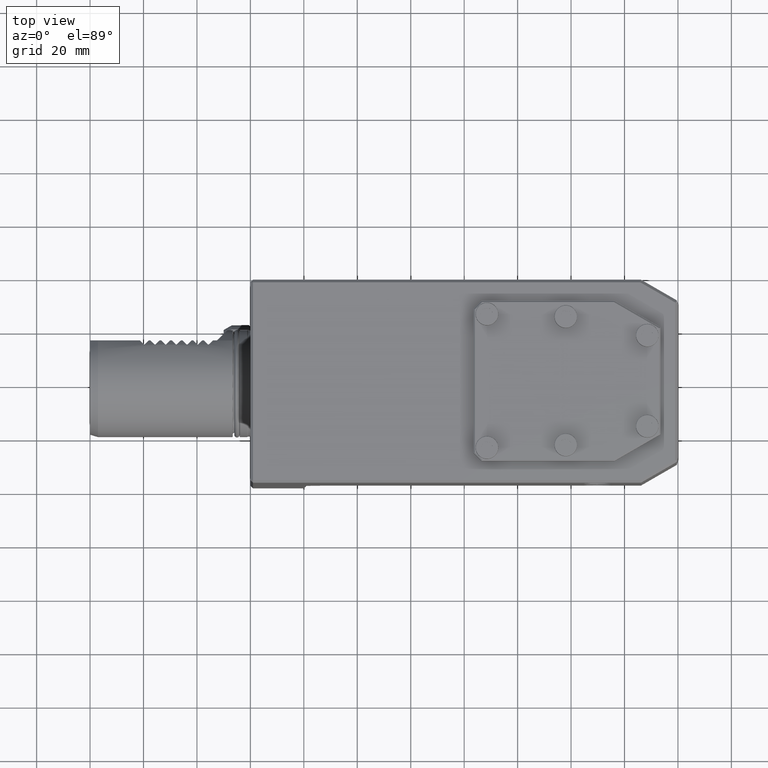
[diagram: clean part render]
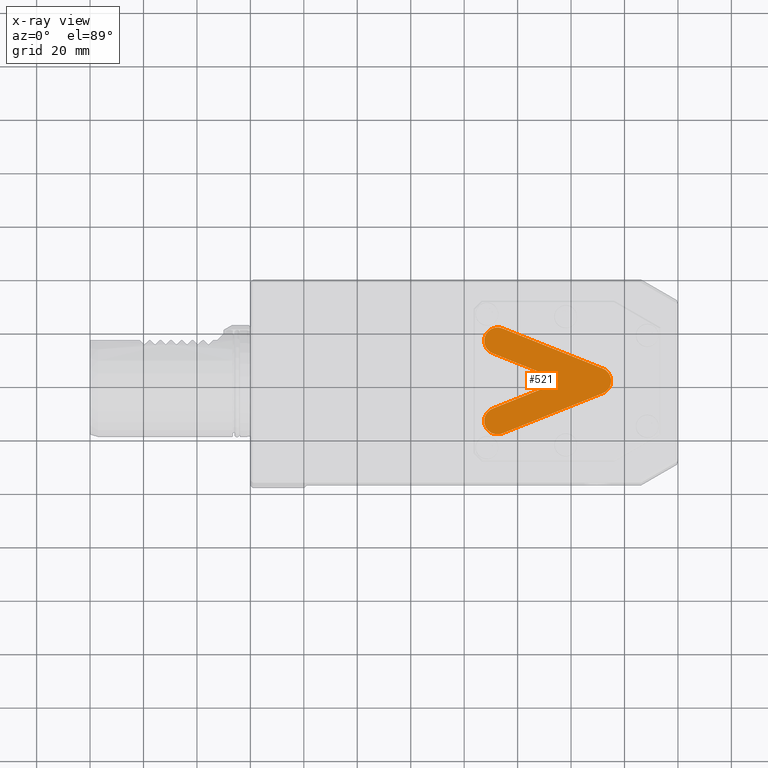
[diagram: x-ray — body ghosted, one internal face saturated and labeled with its STEP entity id]
A machine part, top view, then the same camera in x-ray: the body is ghosted and one INTERNAL B-rep face — a face not visible from any outside direction — is saturated and labeled: STEP entity #521.
In plain terms, the highlighted planar face has unit normal (0, -0, -1).
Its self-contained STEP definition (entity closure, byte-faithful):
#118 = VERTEX_POINT ( 'NONE', #4636 ) ;
#299 = ORIENTED_EDGE ( 'NONE', *, *, #1592, .T. ) ;
#385 = DIRECTION ( 'NONE',  ( 0.9284766908852579714, 0.3713906763541068301, 0.000000000000000000 ) ) ;
#433 = EDGE_CURVE ( 'NONE', #3411, #7931, #4621, .T. ) ;
#474 = VECTOR ( 'NONE', #385, 1000.000000000000114 ) ;
#482 = ORIENTED_EDGE ( 'NONE', *, *, #6486, .T. ) ;
#521 = ADVANCED_FACE ( 'NONE', ( #6967 ), #6899, .T. ) ;
#689 = EDGE_CURVE ( 'NONE', #118, #4991, #7488, .T. ) ;
#702 = VECTOR ( 'NONE', #9260, 1000.000000000000114 ) ;
#1054 = CARTESIAN_POINT ( 'NONE',  ( 131.8569533817703530, 4.642383454426750156, 57.50000000000000000 ) ) ;
#1064 = CARTESIAN_POINT ( 'NONE',  ( 114.2158962549505929, 0.9284766908856527667, 57.50000000000000000 ) ) ;
#1342 = CARTESIAN_POINT ( 'NONE',  ( 94.35695338177042402, 19.64238345442662848, 57.50000000000000000 ) ) ;
#1412 = CARTESIAN_POINT ( 'NONE',  ( 113.8445055785963973, 3.937996793710415842E-13, 57.50000000000000000 ) ) ;
#1592 = EDGE_CURVE ( 'NONE', #1752, #9894, #11226, .T. ) ;
#1598 = CARTESIAN_POINT ( 'NONE',  ( 90.64304661822946230, 10.35761654557401457, 57.50000000000000000 ) ) ;
#1630 = ORIENTED_EDGE ( 'NONE', *, *, #4510, .T. ) ;
#1736 = CARTESIAN_POINT ( 'NONE',  ( 94.35695338177056612, -19.64238345442596767, 57.50000000000000000 ) ) ;
#1752 = VERTEX_POINT ( 'NONE', #4690 ) ;
#1797 = LINE ( 'NONE', #1736, #10200 ) ;
#2187 = ORIENTED_EDGE ( 'NONE', *, *, #10163, .T. ) ;
#2403 = DIRECTION ( 'NONE',  ( -0.000000000000000000, 0.000000000000000000, -1.000000000000000000 ) ) ;
#2783 = VECTOR ( 'NONE', #3826, 1000.000000000000114 ) ;
#3108 = DIRECTION ( 'NONE',  ( 3.491481338843133355E-15, -1.000000000000000000, 0.000000000000000000 ) ) ;
#3411 = VERTEX_POINT ( 'NONE', #1064 ) ;
#3569 = ORIENTED_EDGE ( 'NONE', *, *, #689, .T. ) ;
#3756 = VERTEX_POINT ( 'NONE', #4775 ) ;
#3826 = DIRECTION ( 'NONE',  ( -0.9284766908852604139, 0.3713906763541007794, 0.000000000000000000 ) ) ;
#3939 = AXIS2_PLACEMENT_3D ( 'NONE', #1412, #10260, #10515 ) ;
#4096 = ORIENTED_EDGE ( 'NONE', *, *, #9947, .T. ) ;
#4501 = CARTESIAN_POINT ( 'NONE',  ( 116.5370879821635981, 4.014660571104170771E-13, 57.50000000000000000 ) ) ;
#4510 = EDGE_CURVE ( 'NONE', #12670, #1752, #1797, .T. ) ;
#4621 = LINE ( 'NONE', #4807, #2783 ) ;
#4636 = CARTESIAN_POINT ( 'NONE',  ( 94.35695338177042402, 19.64238345442662848, 57.50000000000000000 ) ) ;
#4690 = CARTESIAN_POINT ( 'NONE',  ( 94.35695338177056612, -19.64238345442596767, 57.50000000000000000 ) ) ;
#4770 = DIRECTION ( 'NONE',  ( 5.551115123125782702E-15, -1.000000000000000000, 0.000000000000000000 ) ) ;
#4775 = CARTESIAN_POINT ( 'NONE',  ( 114.2158962549505929, -0.9284766908848672839, 57.50000000000000000 ) ) ;
#4807 = CARTESIAN_POINT ( 'NONE',  ( 90.64304661822946230, 10.35761654557401457, 57.50000000000000000 ) ) ;
#4991 = VERTEX_POINT ( 'NONE', #1054 ) ;
#5946 = ORIENTED_EDGE ( 'NONE', *, *, #433, .T. ) ;
#5986 = CARTESIAN_POINT ( 'NONE',  ( 92.49999999999994316, 15.00000000000032152, 57.50000000000000000 ) ) ;
#6342 = AXIS2_PLACEMENT_3D ( 'NONE', #12089, #8942, #3108 ) ;
#6486 = EDGE_CURVE ( 'NONE', #9894, #3756, #9353, .T. ) ;
#6899 = PLANE ( 'NONE',  #6342 ) ;
#6967 = FACE_OUTER_BOUND ( 'NONE', #8533, .T. ) ;
#7036 = DIRECTION ( 'NONE',  ( 2.775557561562890957E-15, -1.000000000000000000, 0.000000000000000000 ) ) ;
#7037 = AXIS2_PLACEMENT_3D ( 'NONE', #12307, #2403, #10464 ) ;
#7488 = LINE ( 'NONE', #1342, #702 ) ;
#7687 = EDGE_CURVE ( 'NONE', #7931, #118, #11801, .T. ) ;
#7819 = DIRECTION ( 'NONE',  ( -0.9284766908852578604, -0.3713906763541072742, 0.000000000000000000 ) ) ;
#7844 = CARTESIAN_POINT ( 'NONE',  ( 130.0000000000000000, 4.484715631871798897E-13, 57.50000000000000000 ) ) ;
#7912 = CIRCLE ( 'NONE', #3939, 1.000000000000000000 ) ;
#7931 = VERTEX_POINT ( 'NONE', #1598 ) ;
#8533 = EDGE_LOOP ( 'NONE', ( #4096, #1630, #299, #482, #2187, #5946, #12667, #3569 ) ) ;
#8882 = DIRECTION ( 'NONE',  ( -0.000000000000000000, 0.000000000000000000, -1.000000000000000000 ) ) ;
#8942 = DIRECTION ( 'NONE',  ( 0.000000000000000000, -0.000000000000000000, -1.000000000000000000 ) ) ;
#9260 = DIRECTION ( 'NONE',  ( 0.9284766908852604139, -0.3713906763541007794, 0.000000000000000000 ) ) ;
#9353 = LINE ( 'NONE', #4501, #474 ) ;
#9502 = AXIS2_PLACEMENT_3D ( 'NONE', #5986, #8882, #7036 ) ;
#9894 = VERTEX_POINT ( 'NONE', #12457 ) ;
#9947 = EDGE_CURVE ( 'NONE', #4991, #12670, #12732, .T. ) ;
#10163 = EDGE_CURVE ( 'NONE', #3756, #3411, #7912, .T. ) ;
#10200 = VECTOR ( 'NONE', #7819, 1000.000000000000227 ) ;
#10226 = AXIS2_PLACEMENT_3D ( 'NONE', #7844, #11181, #4770 ) ;
#10260 = DIRECTION ( 'NONE',  ( 0.000000000000000000, -0.000000000000000000, 1.000000000000000000 ) ) ;
#10464 = DIRECTION ( 'NONE',  ( 2.775557561562890957E-15, -1.000000000000000000, 0.000000000000000000 ) ) ;
#10515 = DIRECTION ( 'NONE',  ( 0.000000000000000000, -1.000000000000000000, 0.000000000000000000 ) ) ;
#10832 = CARTESIAN_POINT ( 'NONE',  ( 131.8569533817704098, -4.642383454425838885, 57.50000000000000000 ) ) ;
#11181 = DIRECTION ( 'NONE',  ( -0.000000000000000000, 0.000000000000000000, -1.000000000000000000 ) ) ;
#11226 = CIRCLE ( 'NONE', #7037, 5.000000000000000888 ) ;
#11801 = CIRCLE ( 'NONE', #9502, 5.000000000000000888 ) ;
#12089 = CARTESIAN_POINT ( 'NONE',  ( 130.0000000000000000, 4.484715631871798897E-13, 57.50000000000000000 ) ) ;
#12307 = CARTESIAN_POINT ( 'NONE',  ( 92.50000000000005684, -14.99999999999967670, 57.50000000000000000 ) ) ;
#12457 = CARTESIAN_POINT ( 'NONE',  ( 90.64304661822954756, -10.35761654557338396, 57.50000000000000000 ) ) ;
#12667 = ORIENTED_EDGE ( 'NONE', *, *, #7687, .T. ) ;
#12670 = VERTEX_POINT ( 'NONE', #10832 ) ;
#12732 = CIRCLE ( 'NONE', #10226, 5.000000000000000000 ) ;